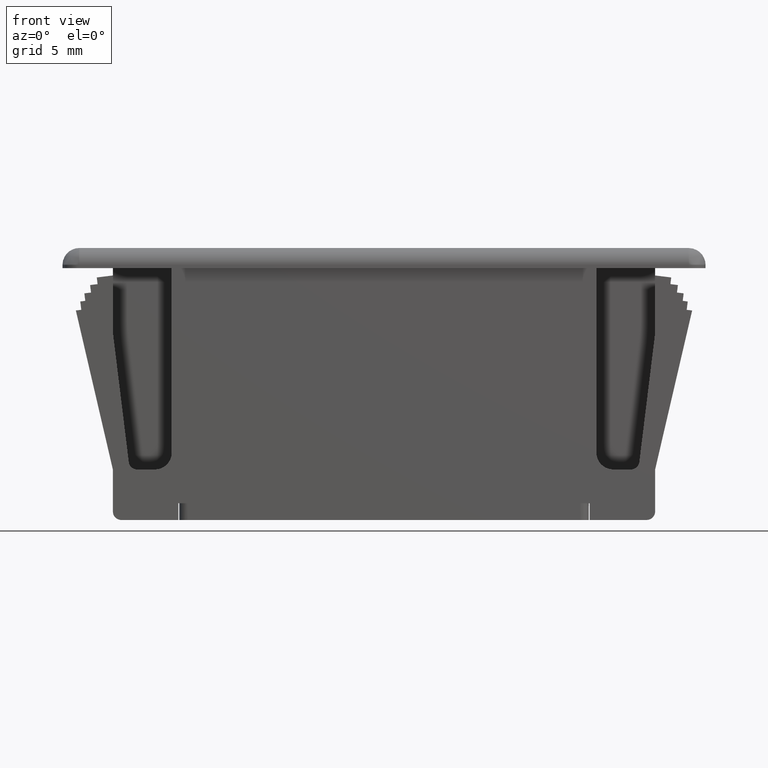
[diagram: clean part render]
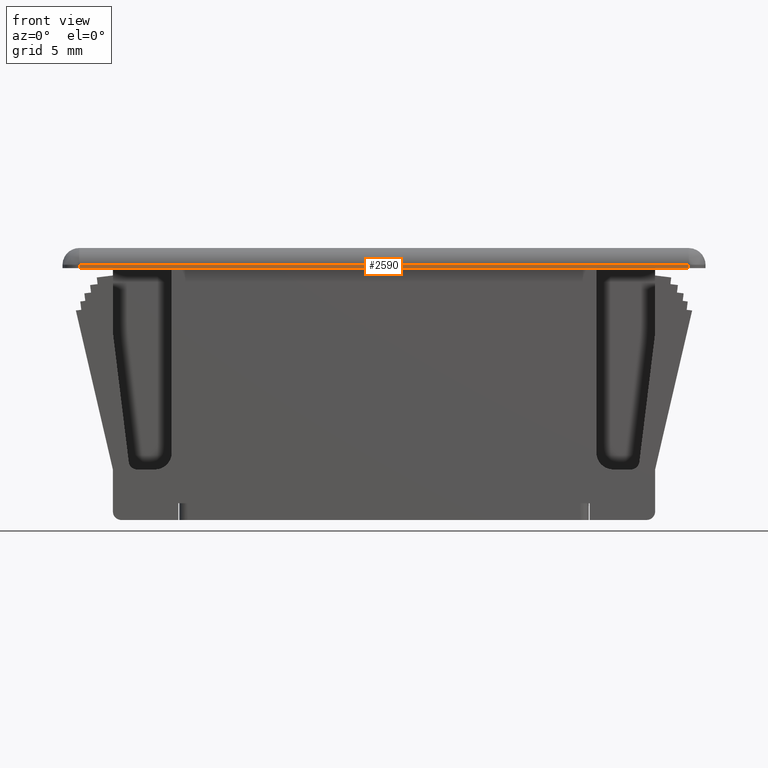
[diagram: same view with one face highlighted and labeled with its STEP entity id]
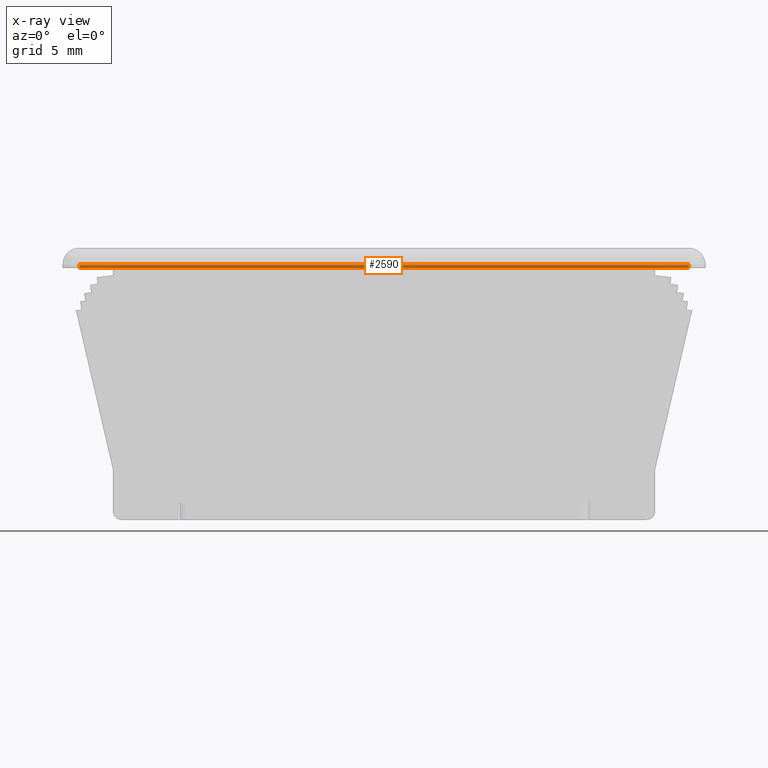
[diagram: x-ray of the same camera — body ghosted, the highlighted face saturated]
A machine part, front view. The second image highlights one B-rep face of the part: STEP entity #2590.
The next image is the same camera in x-ray: the body ghosted, the highlighted face saturated — about 0% of this face is hidden behind the body in this view.
In plain terms, the highlighted face is a freeform B-spline surface patch.
Its self-contained STEP definition (entity closure, byte-faithful):
#2311=CARTESIAN_POINT('',(18.149999999999999,-6.500000000000000,-1.0));
#2312=VERTEX_POINT('',#2311);
#2396=CARTESIAN_POINT('',(-18.149999999999999,-6.500000000000000,-1.0));
#2397=VERTEX_POINT('',#2396);
#2411=CARTESIAN_POINT('',(18.149999999999999,-6.500000000000000,-1.0));
#2412=CARTESIAN_POINT('',(-18.149999999999999,-6.500000000000000,-1.0));
#2413=QUASI_UNIFORM_CURVE('',1,(#2411,#2412),.UNSPECIFIED.,.F.,.U.);
#2414=EDGE_CURVE('',#2312,#2397,#2413,.T.);
#2544=CARTESIAN_POINT('',(-18.149999999999999,-6.500000000000000,-1.199999999999980));
#2545=VERTEX_POINT('',#2544);
#2546=CARTESIAN_POINT('',(-18.149999999999999,-6.500000000000000,-1.199999999999980));
#2547=CARTESIAN_POINT('',(-18.149999999999999,-6.500000000000000,-1.0));
#2548=QUASI_UNIFORM_CURVE('',1,(#2546,#2547),.UNSPECIFIED.,.F.,.U.);
#2549=EDGE_CURVE('',#2545,#2397,#2548,.T.);
#2569=CARTESIAN_POINT('',(-19.963184929643560,-6.500000000000000,-1.209989999612340));
#2570=CARTESIAN_POINT('',(-19.963184929643560,-6.500000000000000,-0.990009995023222));
#2571=CARTESIAN_POINT('',(19.963185903285421,-6.500000000000000,-1.209989999612340));
#2572=CARTESIAN_POINT('',(19.963185903285421,-6.500000000000000,-0.990009995023222));
#2573=B_SPLINE_SURFACE_WITH_KNOTS('',1,1,((#2569,#2571),(#2570,#2572)),.UNSPECIFIED.,.F.,.F.,.U.,(2,2),(2,2),(0.0,0.219980004589119),(0.0,39.926370832928981),.UNSPECIFIED.);
#2574=CARTESIAN_POINT('',(18.149999999999999,-6.500000000000000,-1.199999999999980));
#2575=VERTEX_POINT('',#2574);
#2576=CARTESIAN_POINT('',(18.149999999999999,-6.500000000000000,-1.199999999999980));
#2577=CARTESIAN_POINT('',(18.149999999999999,-6.500000000000000,-1.0));
#2578=QUASI_UNIFORM_CURVE('',1,(#2576,#2577),.UNSPECIFIED.,.F.,.U.);
#2579=EDGE_CURVE('',#2575,#2312,#2578,.T.);
#2580=ORIENTED_EDGE('',*,*,#2579,.T.);
#2581=ORIENTED_EDGE('',*,*,#2414,.T.);
#2582=ORIENTED_EDGE('',*,*,#2549,.F.);
#2583=CARTESIAN_POINT('',(18.149999999999999,-6.500000000000000,-1.199999999999980));
#2584=CARTESIAN_POINT('',(-18.149999999999999,-6.500000000000000,-1.199999999999980));
#2585=QUASI_UNIFORM_CURVE('',1,(#2583,#2584),.UNSPECIFIED.,.F.,.U.);
#2586=EDGE_CURVE('',#2575,#2545,#2585,.T.);
#2587=ORIENTED_EDGE('',*,*,#2586,.F.);
#2588=EDGE_LOOP('',(#2580,#2581,#2582,#2587));
#2589=FACE_OUTER_BOUND('',#2588,.T.);
#2590=ADVANCED_FACE('',(#2589),#2573,.F.);